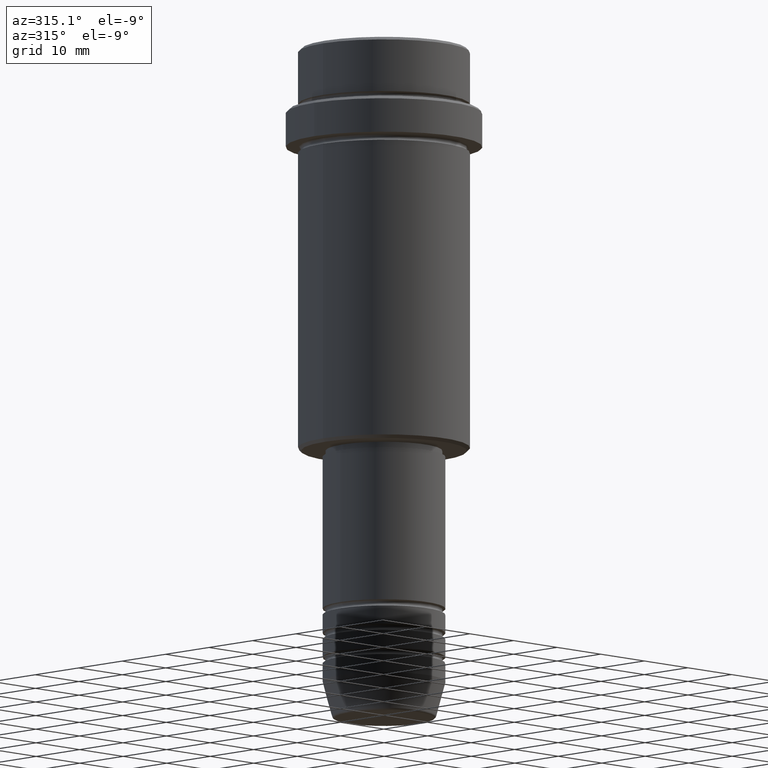
[diagram: clean part render]
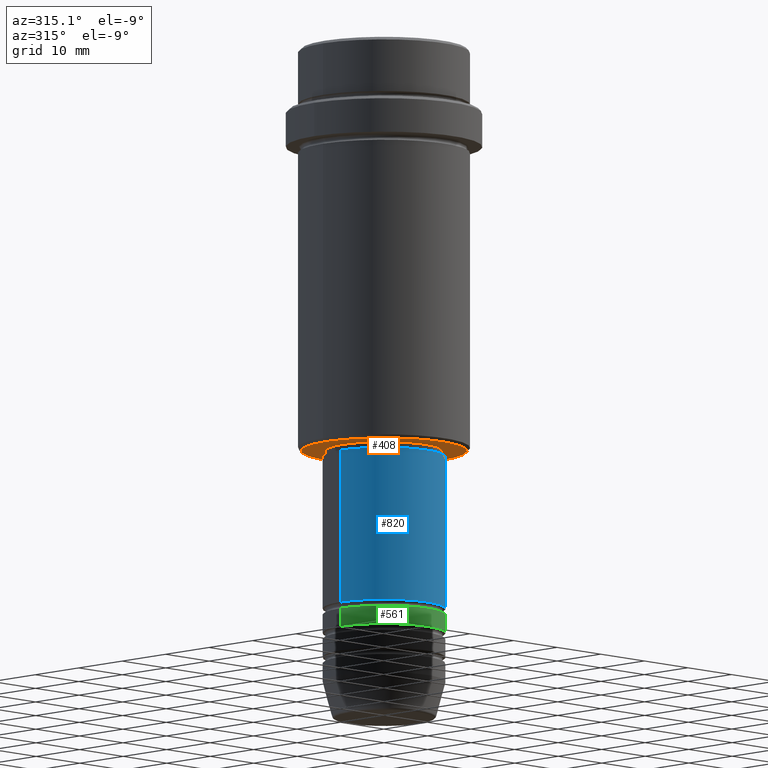
[diagram: same view with three faces highlighted in distinct colors, each labeled with its STEP entity id]
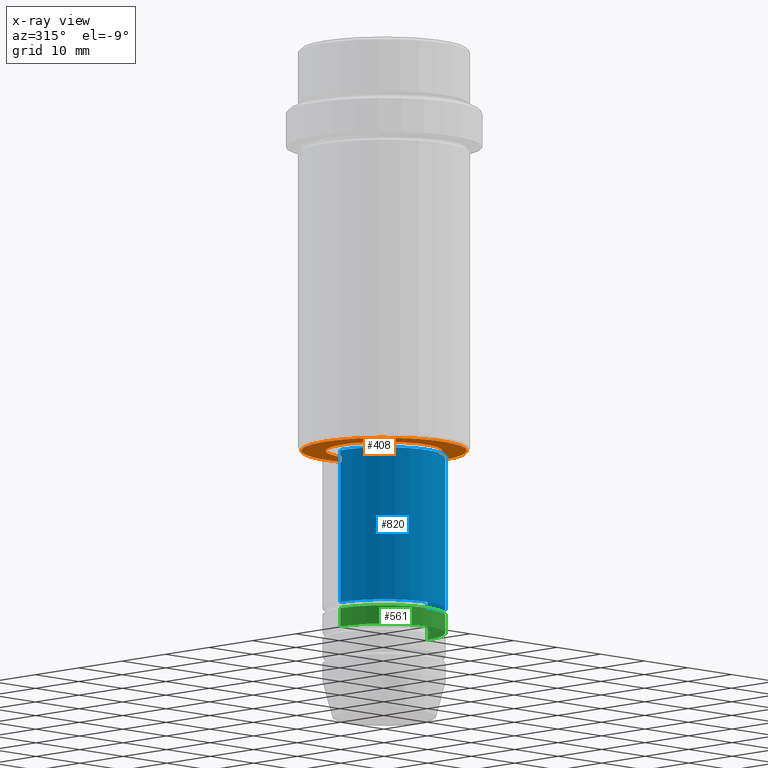
[diagram: x-ray of the same camera — body ghosted, the three highlighted faces saturated]
A machine part, auxiliary view with three faces highlighted in distinct colors.
The next image is the same camera in x-ray (body ghosted, the three faces saturated) — at least one of them is partly hidden behind the body in this view.
Their STEP definitions:

[orange] entity #408 — the highlighted planar face has unit normal (0, 0, -1).
#47 = ORIENTED_EDGE ( 'NONE', *, *, #770, .T. ) ;
#66 = CARTESIAN_POINT ( 'NONE',  ( 0.000000000000000000, 14.00000000000000000, -66.00000000000000000 ) ) ;
#77 = AXIS2_PLACEMENT_3D ( 'NONE', #877, #214, #538 ) ;
#199 = DIRECTION ( 'NONE',  ( -0.000000000000000000, -0.000000000000000000, 1.000000000000000000 ) ) ;
#214 = DIRECTION ( 'NONE',  ( 0.000000000000000000, 0.000000000000000000, -1.000000000000000000 ) ) ;
#232 = CIRCLE ( 'NONE', #663, 9.499999999999994671 ) ;
#248 = VERTEX_POINT ( 'NONE', #867 ) ;
#258 = VERTEX_POINT ( 'NONE', #741 ) ;
#269 = ORIENTED_EDGE ( 'NONE', *, *, #1289, .T. ) ;
#369 = AXIS2_PLACEMENT_3D ( 'NONE', #66, #973, #837 ) ;
#388 = PLANE ( 'NONE',  #369 ) ;
#408 = ADVANCED_FACE ( 'NONE', ( #610, #1078 ), #388, .T. ) ;
#431 = DIRECTION ( 'NONE',  ( 1.000000000000000000, 0.000000000000000000, 0.000000000000000000 ) ) ;
#435 = CIRCLE ( 'NONE', #77, 13.50000000000002665 ) ;
#437 = ORIENTED_EDGE ( 'NONE', *, *, #1057, .T. ) ;
#538 = DIRECTION ( 'NONE',  ( -1.000000000000000000, 0.000000000000000000, 0.000000000000000000 ) ) ;
#606 = EDGE_LOOP ( 'NONE', ( #437, #269 ) ) ;
#610 = FACE_OUTER_BOUND ( 'NONE', #606, .T. ) ;
#624 = AXIS2_PLACEMENT_3D ( 'NONE', #936, #1063, #842 ) ;
#647 = CIRCLE ( 'NONE', #1213, 9.499999999999994671 ) ;
#649 = DIRECTION ( 'NONE',  ( 1.000000000000000000, 0.000000000000000000, 0.000000000000000000 ) ) ;
#663 = AXIS2_PLACEMENT_3D ( 'NONE', #840, #1405, #649 ) ;
#708 = EDGE_LOOP ( 'NONE', ( #47, #1350 ) ) ;
#741 = CARTESIAN_POINT ( 'NONE',  ( -9.499999999999994671, 1.163414459189984894E-15, -66.00000000000000000 ) ) ;
#770 = EDGE_CURVE ( 'NONE', #1203, #258, #647, .T. ) ;
#837 = DIRECTION ( 'NONE',  ( -1.000000000000000000, 0.000000000000000000, -0.000000000000000000 ) ) ;
#840 = CARTESIAN_POINT ( 'NONE',  ( 0.000000000000000000, 0.000000000000000000, -66.00000000000000000 ) ) ;
#842 = DIRECTION ( 'NONE',  ( -1.000000000000000000, 0.000000000000000000, 0.000000000000000000 ) ) ;
#867 = CARTESIAN_POINT ( 'NONE',  ( 13.50000000000002665, 0.000000000000000000, -66.00000000000000000 ) ) ;
#877 = CARTESIAN_POINT ( 'NONE',  ( 0.000000000000000000, 0.000000000000000000, -66.00000000000000000 ) ) ;
#936 = CARTESIAN_POINT ( 'NONE',  ( 0.000000000000000000, 0.000000000000000000, -66.00000000000000000 ) ) ;
#951 = CARTESIAN_POINT ( 'NONE',  ( 9.499999999999994671, 0.000000000000000000, -66.00000000000000000 ) ) ;
#973 = DIRECTION ( 'NONE',  ( 0.000000000000000000, 0.000000000000000000, -1.000000000000000000 ) ) ;
#1040 = CARTESIAN_POINT ( 'NONE',  ( -13.50000000000002665, 1.683889348827612034E-15, -66.00000000000000000 ) ) ;
#1057 = EDGE_CURVE ( 'NONE', #248, #1368, #1143, .T. ) ;
#1063 = DIRECTION ( 'NONE',  ( 0.000000000000000000, 0.000000000000000000, -1.000000000000000000 ) ) ;
#1078 = FACE_BOUND ( 'NONE', #708, .T. ) ;
#1143 = CIRCLE ( 'NONE', #624, 13.50000000000002665 ) ;
#1192 = EDGE_CURVE ( 'NONE', #258, #1203, #232, .T. ) ;
#1203 = VERTEX_POINT ( 'NONE', #951 ) ;
#1213 = AXIS2_PLACEMENT_3D ( 'NONE', #1301, #199, #431 ) ;
#1289 = EDGE_CURVE ( 'NONE', #1368, #248, #435, .T. ) ;
#1301 = CARTESIAN_POINT ( 'NONE',  ( 0.000000000000000000, 0.000000000000000000, -66.00000000000000000 ) ) ;
#1350 = ORIENTED_EDGE ( 'NONE', *, *, #1192, .T. ) ;
#1368 = VERTEX_POINT ( 'NONE', #1040 ) ;
#1405 = DIRECTION ( 'NONE',  ( -0.000000000000000000, -0.000000000000000000, 1.000000000000000000 ) ) ;

[blue] entity #820 — the highlighted cylindrical surface (partial cylindrical patch) has radius 10 mm, axis along (-0, -0, 1).
#8 = ORIENTED_EDGE ( 'NONE', *, *, #210, .T. ) ;
#29 = DIRECTION ( 'NONE',  ( -0.000000000000000000, -0.000000000000000000, 1.000000000000000000 ) ) ;
#58 = LINE ( 'NONE', #851, #476 ) ;
#60 = CARTESIAN_POINT ( 'NONE',  ( -10.00000000000000178, 1.224646799147353454E-15, 0.000000000000000000 ) ) ;
#69 = DIRECTION ( 'NONE',  ( -0.000000000000000000, -0.000000000000000000, 1.000000000000000000 ) ) ;
#94 = AXIS2_PLACEMENT_3D ( 'NONE', #175, #1385, #1391 ) ;
#131 = CARTESIAN_POINT ( 'NONE',  ( 0.000000000000000000, 0.000000000000000000, 0.000000000000000000 ) ) ;
#167 = VERTEX_POINT ( 'NONE', #448 ) ;
#175 = CARTESIAN_POINT ( 'NONE',  ( 0.000000000000000000, 0.000000000000000000, -91.99999999999988631 ) ) ;
#176 = VERTEX_POINT ( 'NONE', #677 ) ;
#210 = EDGE_CURVE ( 'NONE', #167, #176, #277, .T. ) ;
#216 = CYLINDRICAL_SURFACE ( 'NONE', #1025, 10.00000000000000178 ) ;
#267 = EDGE_CURVE ( 'NONE', #167, #1341, #1400, .T. ) ;
#271 = DIRECTION ( 'NONE',  ( 1.000000000000000000, 0.000000000000000000, 0.000000000000000000 ) ) ;
#277 = CIRCLE ( 'NONE', #94, 10.00000000000000000 ) ;
#293 = CARTESIAN_POINT ( 'NONE',  ( 10.00000000000000178, 0.000000000000000000, -67.00000000000000000 ) ) ;
#389 = ORIENTED_EDGE ( 'NONE', *, *, #420, .T. ) ;
#394 = CIRCLE ( 'NONE', #766, 10.00000000000000178 ) ;
#420 = EDGE_CURVE ( 'NONE', #176, #1084, #58, .T. ) ;
#448 = CARTESIAN_POINT ( 'NONE',  ( -10.00000000000000000, 1.224646799147353256E-15, -91.99999999999988631 ) ) ;
#476 = VECTOR ( 'NONE', #829, 1000.000000000000000 ) ;
#495 = CARTESIAN_POINT ( 'NONE',  ( 0.000000000000000000, 0.000000000000000000, -67.00000000000000000 ) ) ;
#645 = ORIENTED_EDGE ( 'NONE', *, *, #267, .F. ) ;
#677 = CARTESIAN_POINT ( 'NONE',  ( 10.00000000000000000, 0.000000000000000000, -91.99999999999988631 ) ) ;
#757 = FACE_OUTER_BOUND ( 'NONE', #795, .T. ) ;
#766 = AXIS2_PLACEMENT_3D ( 'NONE', #495, #958, #271 ) ;
#777 = CARTESIAN_POINT ( 'NONE',  ( -10.00000000000000178, 1.224646799147353454E-15, -67.00000000000000000 ) ) ;
#795 = EDGE_LOOP ( 'NONE', ( #645, #8, #389, #1169 ) ) ;
#820 = ADVANCED_FACE ( 'NONE', ( #757 ), #216, .T. ) ;
#829 = DIRECTION ( 'NONE',  ( -0.000000000000000000, -0.000000000000000000, 1.000000000000000000 ) ) ;
#835 = VECTOR ( 'NONE', #69, 1000.000000000000000 ) ;
#851 = CARTESIAN_POINT ( 'NONE',  ( 10.00000000000000178, 0.000000000000000000, 0.000000000000000000 ) ) ;
#929 = DIRECTION ( 'NONE',  ( 1.000000000000000000, 0.000000000000000000, 0.000000000000000000 ) ) ;
#958 = DIRECTION ( 'NONE',  ( -0.000000000000000000, -0.000000000000000000, 1.000000000000000000 ) ) ;
#1025 = AXIS2_PLACEMENT_3D ( 'NONE', #131, #29, #929 ) ;
#1034 = EDGE_CURVE ( 'NONE', #1341, #1084, #394, .T. ) ;
#1084 = VERTEX_POINT ( 'NONE', #293 ) ;
#1169 = ORIENTED_EDGE ( 'NONE', *, *, #1034, .F. ) ;
#1341 = VERTEX_POINT ( 'NONE', #777 ) ;
#1385 = DIRECTION ( 'NONE',  ( -0.000000000000000000, -0.000000000000000000, 1.000000000000000000 ) ) ;
#1391 = DIRECTION ( 'NONE',  ( 1.000000000000000000, 0.000000000000000000, 0.000000000000000000 ) ) ;
#1400 = LINE ( 'NONE', #60, #835 ) ;

[green] entity #561 — the highlighted cylindrical surface (partial cylindrical patch) has radius 10 mm, axis along (-0, -0, 1).
#40 = LINE ( 'NONE', #134, #742 ) ;
#43 = AXIS2_PLACEMENT_3D ( 'NONE', #668, #1342, #130 ) ;
#52 = DIRECTION ( 'NONE',  ( 1.000000000000000000, 0.000000000000000000, 0.000000000000000000 ) ) ;
#62 = CARTESIAN_POINT ( 'NONE',  ( -10.00000000000000000, 1.224646799147353256E-15, -95.99999999999988631 ) ) ;
#110 = CARTESIAN_POINT ( 'NONE',  ( 10.00000000000000000, 0.000000000000000000, -95.99999999999988631 ) ) ;
#130 = DIRECTION ( 'NONE',  ( 1.000000000000000000, 0.000000000000000000, 0.000000000000000000 ) ) ;
#134 = CARTESIAN_POINT ( 'NONE',  ( -10.00000000000000000, 1.224646799147353256E-15, 0.000000000000000000 ) ) ;
#161 = ORIENTED_EDGE ( 'NONE', *, *, #873, .F. ) ;
#179 = EDGE_CURVE ( 'NONE', #1021, #365, #1140, .T. ) ;
#242 = CARTESIAN_POINT ( 'NONE',  ( 10.00000000000000000, 0.000000000000000000, 0.000000000000000000 ) ) ;
#254 = AXIS2_PLACEMENT_3D ( 'NONE', #730, #965, #52 ) ;
#287 = FACE_OUTER_BOUND ( 'NONE', #336, .T. ) ;
#303 = CARTESIAN_POINT ( 'NONE',  ( 0.000000000000000000, 0.000000000000000000, -92.99999999999988631 ) ) ;
#321 = DIRECTION ( 'NONE',  ( -0.000000000000000000, -0.000000000000000000, 1.000000000000000000 ) ) ;
#336 = EDGE_LOOP ( 'NONE', ( #161, #542, #348, #450 ) ) ;
#348 = ORIENTED_EDGE ( 'NONE', *, *, #1228, .T. ) ;
#365 = VERTEX_POINT ( 'NONE', #110 ) ;
#373 = CIRCLE ( 'NONE', #1195, 10.00000000000000000 ) ;
#385 = VERTEX_POINT ( 'NONE', #997 ) ;
#450 = ORIENTED_EDGE ( 'NONE', *, *, #1388, .F. ) ;
#542 = ORIENTED_EDGE ( 'NONE', *, *, #179, .T. ) ;
#549 = VECTOR ( 'NONE', #1019, 1000.000000000000000 ) ;
#561 = ADVANCED_FACE ( 'NONE', ( #287 ), #833, .T. ) ;
#668 = CARTESIAN_POINT ( 'NONE',  ( 0.000000000000000000, 0.000000000000000000, -95.99999999999988631 ) ) ;
#730 = CARTESIAN_POINT ( 'NONE',  ( 0.000000000000000000, 0.000000000000000000, 0.000000000000000000 ) ) ;
#742 = VECTOR ( 'NONE', #1036, 1000.000000000000000 ) ;
#833 = CYLINDRICAL_SURFACE ( 'NONE', #254, 10.00000000000000000 ) ;
#873 = EDGE_CURVE ( 'NONE', #1021, #385, #40, .T. ) ;
#944 = VERTEX_POINT ( 'NONE', #1334 ) ;
#965 = DIRECTION ( 'NONE',  ( -0.000000000000000000, -0.000000000000000000, 1.000000000000000000 ) ) ;
#997 = CARTESIAN_POINT ( 'NONE',  ( -10.00000000000000000, 1.224646799147353256E-15, -92.99999999999988631 ) ) ;
#1019 = DIRECTION ( 'NONE',  ( -0.000000000000000000, -0.000000000000000000, 1.000000000000000000 ) ) ;
#1021 = VERTEX_POINT ( 'NONE', #62 ) ;
#1036 = DIRECTION ( 'NONE',  ( -0.000000000000000000, -0.000000000000000000, 1.000000000000000000 ) ) ;
#1140 = CIRCLE ( 'NONE', #43, 10.00000000000000000 ) ;
#1175 = DIRECTION ( 'NONE',  ( 1.000000000000000000, 0.000000000000000000, 0.000000000000000000 ) ) ;
#1195 = AXIS2_PLACEMENT_3D ( 'NONE', #303, #321, #1175 ) ;
#1224 = LINE ( 'NONE', #242, #549 ) ;
#1228 = EDGE_CURVE ( 'NONE', #365, #944, #1224, .T. ) ;
#1334 = CARTESIAN_POINT ( 'NONE',  ( 10.00000000000000000, 0.000000000000000000, -92.99999999999988631 ) ) ;
#1342 = DIRECTION ( 'NONE',  ( -0.000000000000000000, -0.000000000000000000, 1.000000000000000000 ) ) ;
#1388 = EDGE_CURVE ( 'NONE', #385, #944, #373, .T. ) ;